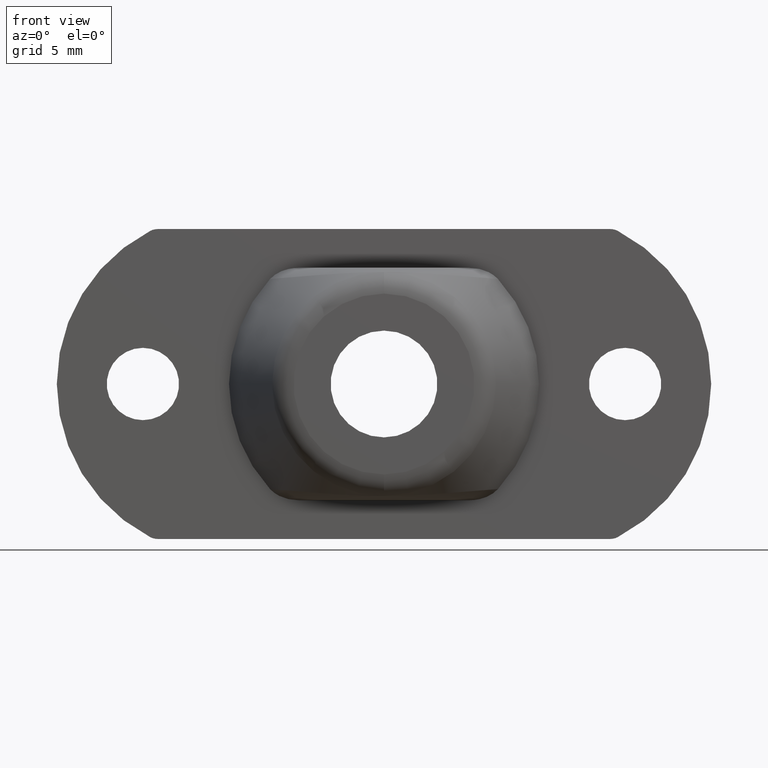
[diagram: clean part render]
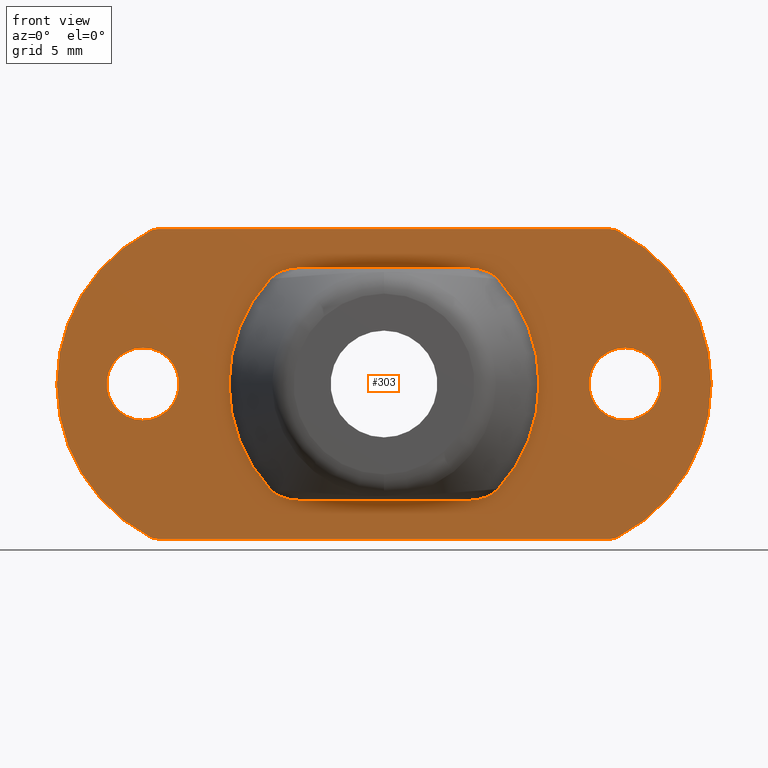
[diagram: same view with one face highlighted and labeled with its STEP entity id]
A machine part, front view. The second image highlights one B-rep face of the part: STEP entity #303.
In plain terms, the highlighted planar face has unit normal (0, -1, 0).
Its self-contained STEP definition (entity closure, byte-faithful):
#10 = AXIS2_PLACEMENT_3D ( 'NONE', #775, #214, #861 ) ;
#13 = FACE_BOUND ( 'NONE', #1221, .T. ) ;
#22 = AXIS2_PLACEMENT_3D ( 'NONE', #323, #212, #1107 ) ;
#32 = ORIENTED_EDGE ( 'NONE', *, *, #351, .T. ) ;
#33 = ORIENTED_EDGE ( 'NONE', *, *, #1429, .T. ) ;
#35 = ORIENTED_EDGE ( 'NONE', *, *, #1222, .T. ) ;
#37 = ORIENTED_EDGE ( 'NONE', *, *, #1179, .T. ) ;
#40 = ORIENTED_EDGE ( 'NONE', *, *, #451, .T. ) ;
#50 = ORIENTED_EDGE ( 'NONE', *, *, #556, .T. ) ;
#51 = DIRECTION ( 'NONE',  ( -0.0000000000000000000, 1.000000000000000000, -0.0000000000000000000 ) ) ;
#54 = ORIENTED_EDGE ( 'NONE', *, *, #806, .T. ) ;
#76 = EDGE_CURVE ( 'NONE', #1309, #629, #841, .T. ) ;
#80 = CARTESIAN_POINT ( 'NONE',  ( 5.700970325320840400, -1.500000000000115000, 6.648326832784012400 ) ) ;
#87 = VERTEX_POINT ( 'NONE', #274 ) ;
#88 = DIRECTION ( 'NONE',  ( 0.0000000000000000000, 0.0000000000000000000, -1.000000000000000000 ) ) ;
#89 = EDGE_LOOP ( 'NONE', ( #1448, #1010 ) ) ;
#105 = CARTESIAN_POINT ( 'NONE',  ( 13.12310562561782100, -1.500000000000170100, 8.000000000000000000 ) ) ;
#133 = CARTESIAN_POINT ( 'NONE',  ( 13.58122847290865900, -1.500000000000170100, -8.888888888888889300 ) ) ;
#154 = CARTESIAN_POINT ( 'NONE',  ( 13.35889894354082100, -1.500000000000170100, 9.000000000000000000 ) ) ;
#157 = VERTEX_POINT ( 'NONE', #392 ) ;
#159 = CARTESIAN_POINT ( 'NONE',  ( 0.0000000000000000000, -1.500000000000115000, 0.0000000000000000000 ) ) ;
#161 = AXIS2_PLACEMENT_3D ( 'NONE', #886, #1109, #441 ) ;
#169 = CIRCLE ( 'NONE', #656, 1.000000000000000900 ) ;
#177 = ORIENTED_EDGE ( 'NONE', *, *, #818, .T. ) ;
#180 = DIRECTION ( 'NONE',  ( 0.0000000000000000000, -1.000000000000000000, 0.0000000000000000000 ) ) ;
#182 = CARTESIAN_POINT ( 'NONE',  ( -13.12310562561766100, -1.500000000000170100, 8.000000000000000000 ) ) ;
#187 = CARTESIAN_POINT ( 'NONE',  ( -5.551314245625789600, -1.500000000000115000, -6.702338859226790300 ) ) ;
#193 = VERTEX_POINT ( 'NONE', #927 ) ;
#196 = CARTESIAN_POINT ( 'NONE',  ( 6.128015736522826300, -1.500000000000115000, 6.477598152113238000 ) ) ;
#197 = EDGE_CURVE ( 'NONE', #193, #87, #647, .T. ) ;
#212 = DIRECTION ( 'NONE',  ( -0.0000000000000000000, 1.000000000000000000, -0.0000000000000000000 ) ) ;
#214 = DIRECTION ( 'NONE',  ( 0.0000000000000000000, -1.000000000000000000, 0.0000000000000000000 ) ) ;
#218 = CARTESIAN_POINT ( 'NONE',  ( -14.00000000000000000, -1.499999999992952100, 0.0000000000000000000 ) ) ;
#223 = CARTESIAN_POINT ( 'NONE',  ( -6.616009981773640200, -1.500000000000115000, -6.101508987215459500 ) ) ;
#231 = EDGE_CURVE ( 'NONE', #555, #485, #346, .T. ) ;
#252 = CARTESIAN_POINT ( 'NONE',  ( 6.131373672574815400, -1.500000000000114800, -6.475759572641408100 ) ) ;
#266 = AXIS2_PLACEMENT_3D ( 'NONE', #723, #51, #832 ) ;
#271 = EDGE_CURVE ( 'NONE', #545, #816, #572, .T. ) ;
#274 = CARTESIAN_POINT ( 'NONE',  ( 14.00000000000000000, -1.499999999992952100, -2.100000000000000100 ) ) ;
#276 = CARTESIAN_POINT ( 'NONE',  ( 13.12310562561782100, -1.500000000000170100, -9.000000000000000000 ) ) ;
#279 = VERTEX_POINT ( 'NONE', #276 ) ;
#286 = CARTESIAN_POINT ( 'NONE',  ( -6.510500428729935500, -1.500000000000114600, -6.215915481997694100 ) ) ;
#303 = ADVANCED_FACE ( 'NONE', ( #13, #864, #1434, #1132 ), #1045, .T. ) ;
#304 = ORIENTED_EDGE ( 'NONE', *, *, #1264, .T. ) ;
#309 = CARTESIAN_POINT ( 'NONE',  ( 6.510666653488649500, -1.500000000000115000, 6.215735240574631800 ) ) ;
#314 = B_SPLINE_CURVE_WITH_KNOTS ( 'NONE', 3,
 ( #1326, #1131, #1456, #507, #1288, #622, #1404, #737 ),
 .UNSPECIFIED., .F., .F.,
 ( 4, 2, 2, 4 ),
 ( 0.0000000000000000000, 0.0004594128203838278500, 0.0009188256407676556900, 0.001837651281535309000 ),
 .UNSPECIFIED. ) ;
#315 = VECTOR ( 'NONE', #848, 1000.000000000000000 ) ;
#323 = CARTESIAN_POINT ( 'NONE',  ( 14.00000000000000000, -1.499999999992952100, 0.0000000000000000000 ) ) ;
#332 = DIRECTION ( 'NONE',  ( 0.0000000000000000000, 0.0000000000000000000, -1.000000000000000000 ) ) ;
#336 = ORIENTED_EDGE ( 'NONE', *, *, #427, .T. ) ;
#338 = DIRECTION ( 'NONE',  ( 0.0000000000000000000, -1.000000000000000000, 0.0000000000000000000 ) ) ;
#346 = LINE ( 'NONE', #154, #604 ) ;
#347 = ORIENTED_EDGE ( 'NONE', *, *, #76, .T. ) ;
#351 = EDGE_CURVE ( 'NONE', #1237, #555, #498, .T. ) ;
#373 = CARTESIAN_POINT ( 'NONE',  ( 6.391020845491791400, -1.500000000000115000, -6.312004959507651100 ) ) ;
#379 = EDGE_CURVE ( 'NONE', #560, #856, #1405, .T. ) ;
#392 = CARTESIAN_POINT ( 'NONE',  ( 6.616009981773640200, -1.500000000000115000, 6.101508987215459500 ) ) ;
#407 = VERTEX_POINT ( 'NONE', #735 ) ;
#414 = CARTESIAN_POINT ( 'NONE',  ( -4.939806075597530800, -1.499999999992952100, -6.750000000000000000 ) ) ;
#421 = CARTESIAN_POINT ( 'NONE',  ( -14.00000000000000000, -1.499999999992952100, 2.100000000000000100 ) ) ;
#427 = EDGE_CURVE ( 'NONE', #529, #1204, #464, .T. ) ;
#432 = CARTESIAN_POINT ( 'NONE',  ( 0.0000000000000000000, -1.500000000000115000, 0.0000000000000000000 ) ) ;
#441 = DIRECTION ( 'NONE',  ( 0.0000000000000000000, 0.0000000000000000000, -1.000000000000000000 ) ) ;
#444 = CARTESIAN_POINT ( 'NONE',  ( -13.35889894354066100, -1.500000000000170100, -9.000000000000000000 ) ) ;
#451 = EDGE_CURVE ( 'NONE', #407, #1184, #1021, .T. ) ;
#452 = ORIENTED_EDGE ( 'NONE', *, *, #231, .T. ) ;
#458 = CARTESIAN_POINT ( 'NONE',  ( 13.58122847290865900, -1.500000000000170100, 8.888888888888889300 ) ) ;
#463 = CIRCLE ( 'NONE', #494, 2.100000000000000100 ) ;
#464 = CIRCLE ( 'NONE', #10, 10.00000000000000000 ) ;
#485 = VERTEX_POINT ( 'NONE', #1431 ) ;
#489 = CARTESIAN_POINT ( 'NONE',  ( 4.939806075597530800, -1.499999999992952100, -6.750000000000000000 ) ) ;
#494 = AXIS2_PLACEMENT_3D ( 'NONE', #218, #999, #332 ) ;
#498 = CIRCLE ( 'NONE', #858, 1.000000000000000000 ) ;
#507 = CARTESIAN_POINT ( 'NONE',  ( -6.131116787332070200, -1.500000000000115000, 6.475907926370528100 ) ) ;
#510 = ORIENTED_EDGE ( 'NONE', *, *, #1449, .T. ) ;
#527 = CARTESIAN_POINT ( 'NONE',  ( -6.616009981773640200, -1.500000000000115000, 6.101508987215459500 ) ) ;
#529 = VERTEX_POINT ( 'NONE', #1119 ) ;
#540 = CARTESIAN_POINT ( 'NONE',  ( -4.939806075597539700, -1.499999999992952100, 6.750000000000000000 ) ) ;
#542 = DIRECTION ( 'NONE',  ( 0.0000000000000000000, 0.0000000000000000000, -1.000000000000000000 ) ) ;
#545 = VERTEX_POINT ( 'NONE', #540 ) ;
#553 = DIRECTION ( 'NONE',  ( 0.0000000000000000000, -1.000000000000000000, 0.0000000000000000000 ) ) ;
#555 = VERTEX_POINT ( 'NONE', #558 ) ;
#556 = EDGE_CURVE ( 'NONE', #649, #279, #1183, .T. ) ;
#558 = CARTESIAN_POINT ( 'NONE',  ( 13.12310562561782100, -1.500000000000170100, 9.000000000000000000 ) ) ;
#560 = VERTEX_POINT ( 'NONE', #1181 ) ;
#564 = CIRCLE ( 'NONE', #1017, 1.000000000000000000 ) ;
#570 = DIRECTION ( 'NONE',  ( -1.000000000000000000, 0.0000000000000000000, 0.0000000000000000000 ) ) ;
#572 = LINE ( 'NONE', #963, #315 ) ;
#604 = VECTOR ( 'NONE', #1253, 1000.000000000000000 ) ;
#608 = CARTESIAN_POINT ( 'NONE',  ( 5.558169829960056600, -1.500000000000115200, -6.700299535577277000 ) ) ;
#614 = CARTESIAN_POINT ( 'NONE',  ( 6.616009981773640200, -1.500000000000115000, -6.101508987215459500 ) ) ;
#622 = CARTESIAN_POINT ( 'NONE',  ( -5.558305194847887900, -1.500000000000114800, 6.700244443319615300 ) ) ;
#629 = VERTEX_POINT ( 'NONE', #967 ) ;
#634 = DIRECTION ( 'NONE',  ( 0.0000000000000000000, -1.000000000000000000, 0.0000000000000000000 ) ) ;
#642 = CARTESIAN_POINT ( 'NONE',  ( 4.939806075597530800, -1.499999999992952100, 6.750000000000000000 ) ) ;
#647 = CIRCLE ( 'NONE', #266, 2.100000000000000100 ) ;
#649 = VERTEX_POINT ( 'NONE', #736 ) ;
#654 = CARTESIAN_POINT ( 'NONE',  ( -13.58122847290849900, -1.500000000000170100, -8.888888888888889300 ) ) ;
#656 = AXIS2_PLACEMENT_3D ( 'NONE', #1223, #553, #1333 ) ;
#690 = CARTESIAN_POINT ( 'NONE',  ( 6.616009981773640200, -1.500000000000115000, -6.101508987215459500 ) ) ;
#723 = CARTESIAN_POINT ( 'NONE',  ( 14.00000000000000000, -1.499999999992952100, 0.0000000000000000000 ) ) ;
#730 = CIRCLE ( 'NONE', #796, 10.00000000000000000 ) ;
#735 = CARTESIAN_POINT ( 'NONE',  ( -14.00000000000000000, -1.499999999992952100, -2.100000000000000100 ) ) ;
#736 = CARTESIAN_POINT ( 'NONE',  ( -13.12310562561766100, -1.500000000000170100, -9.000000000000000000 ) ) ;
#737 = CARTESIAN_POINT ( 'NONE',  ( -4.939806075597539700, -1.499999999992952100, 6.750000000000000000 ) ) ;
#749 = CARTESIAN_POINT ( 'NONE',  ( 5.550105634215881000, -1.500000000000114800, 6.687029123979004700 ) ) ;
#756 = DIRECTION ( 'NONE',  ( 0.0000000000000000000, -1.000000000000000000, 0.0000000000000000000 ) ) ;
#775 = CARTESIAN_POINT ( 'NONE',  ( -9.000000000000000000, -1.500000000000170100, 0.0000000000000000000 ) ) ;
#785 = ORIENTED_EDGE ( 'NONE', *, *, #379, .T. ) ;
#787 = AXIS2_PLACEMENT_3D ( 'NONE', #159, #634, #928 ) ;
#796 = AXIS2_PLACEMENT_3D ( 'NONE', #1000, #338, #1116 ) ;
#804 = VECTOR ( 'NONE', #570, 1000.000000000000000 ) ;
#806 = EDGE_CURVE ( 'NONE', #485, #529, #564, .T. ) ;
#816 = VERTEX_POINT ( 'NONE', #1224 ) ;
#818 = EDGE_CURVE ( 'NONE', #856, #1164, #1124, .T. ) ;
#821 = CIRCLE ( 'NONE', #22, 2.100000000000000100 ) ;
#826 = AXIS2_PLACEMENT_3D ( 'NONE', #432, #1208, #542 ) ;
#832 = DIRECTION ( 'NONE',  ( 0.0000000000000000000, 0.0000000000000000000, -1.000000000000000000 ) ) ;
#839 = CARTESIAN_POINT ( 'NONE',  ( -6.127812281202378300, -1.500000000000114600, -6.477653480698494400 ) ) ;
#840 = LINE ( 'NONE', #1350, #804 ) ;
#841 = B_SPLINE_CURVE_WITH_KNOTS ( 'NONE', 3,
 ( #614, #1056, #373, #252, #1273, #608, #1162, #489 ),
 .UNSPECIFIED., .F., .F.,
 ( 4, 2, 2, 4 ),
 ( 0.0000000000000000000, 0.0004591523065738800500, 0.0009183046131477601000, 0.001836609226295520200 ),
 .UNSPECIFIED. ) ;
#847 = DIRECTION ( 'NONE',  ( 0.0000000000000000000, 0.0000000000000000000, -1.000000000000000000 ) ) ;
#848 = DIRECTION ( 'NONE',  ( 1.000000000000000000, 0.0000000000000000000, 0.0000000000000000000 ) ) ;
#856 = VERTEX_POINT ( 'NONE', #223 ) ;
#858 = AXIS2_PLACEMENT_3D ( 'NONE', #105, #180, #1414 ) ;
#859 = CARTESIAN_POINT ( 'NONE',  ( 5.989800241758378400, -1.500000000000114800, 6.543425856405197500 ) ) ;
#861 = DIRECTION ( 'NONE',  ( 0.0000000000000000000, 0.0000000000000000000, -1.000000000000000000 ) ) ;
#864 = FACE_BOUND ( 'NONE', #89, .T. ) ;
#865 = DIRECTION ( 'NONE',  ( 1.000000000000000000, 0.0000000000000000000, 0.0000000000000000000 ) ) ;
#874 = EDGE_CURVE ( 'NONE', #87, #193, #821, .T. ) ;
#879 = VECTOR ( 'NONE', #865, 1000.000000000000000 ) ;
#883 = ORIENTED_EDGE ( 'NONE', *, *, #1425, .T. ) ;
#886 = CARTESIAN_POINT ( 'NONE',  ( -14.00000000000000000, -1.499999999992952100, 0.0000000000000000000 ) ) ;
#927 = CARTESIAN_POINT ( 'NONE',  ( 14.00000000000000000, -1.499999999992952100, 2.100000000000000100 ) ) ;
#928 = DIRECTION ( 'NONE',  ( 0.0000000000000000000, 0.0000000000000000000, -1.000000000000000000 ) ) ;
#946 = CARTESIAN_POINT ( 'NONE',  ( -6.388213634190924100, -1.500000000000114800, -6.314119092981215400 ) ) ;
#947 = DIRECTION ( 'NONE',  ( -0.0000000000000000000, 1.000000000000000000, -0.0000000000000000000 ) ) ;
#956 = DIRECTION ( 'NONE',  ( 0.0000000000000000000, -1.000000000000000000, 0.0000000000000000000 ) ) ;
#963 = CARTESIAN_POINT ( 'NONE',  ( 28.06997129832040000, -1.499999999992952100, 6.750000000000000000 ) ) ;
#967 = CARTESIAN_POINT ( 'NONE',  ( 4.939806075597530800, -1.499999999992952100, -6.750000000000000000 ) ) ;
#972 = CARTESIAN_POINT ( 'NONE',  ( 6.389337665601252600, -1.500000000000115000, 6.313340379108318200 ) ) ;
#999 = DIRECTION ( 'NONE',  ( -0.0000000000000000000, 1.000000000000000000, -0.0000000000000000000 ) ) ;
#1000 = CARTESIAN_POINT ( 'NONE',  ( 9.000000000000149200, -1.500000000000170100, 0.0000000000000000000 ) ) ;
#1010 = ORIENTED_EDGE ( 'NONE', *, *, #874, .T. ) ;
#1017 = AXIS2_PLACEMENT_3D ( 'NONE', #182, #956, #847 ) ;
#1021 = CIRCLE ( 'NONE', #161, 2.100000000000000100 ) ;
#1044 = EDGE_CURVE ( 'NONE', #1164, #545, #314, .T. ) ;
#1045 = PLANE ( 'NONE',  #787 ) ;
#1056 = CARTESIAN_POINT ( 'NONE',  ( 6.510392827108494100, -1.500000000000115000, -6.216032156971540900 ) ) ;
#1060 = CARTESIAN_POINT ( 'NONE',  ( -6.616009981773640200, -1.500000000000115000, -6.101508987215459500 ) ) ;
#1061 = DIRECTION ( 'NONE',  ( 0.0000000000000000000, 0.0000000000000000000, -1.000000000000000000 ) ) ;
#1064 = ORIENTED_EDGE ( 'NONE', *, *, #1155, .T. ) ;
#1066 = CARTESIAN_POINT ( 'NONE',  ( 0.0000000000000000000, -1.500000000000115000, 0.0000000000000000000 ) ) ;
#1071 = CARTESIAN_POINT ( 'NONE',  ( -5.988980252745393300, -1.500000000000114800, -6.543892661402816600 ) ) ;
#1087 = CARTESIAN_POINT ( 'NONE',  ( 6.616009981773640200, -1.500000000000115000, 6.101508987215459500 ) ) ;
#1107 = DIRECTION ( 'NONE',  ( 0.0000000000000000000, 0.0000000000000000000, -1.000000000000000000 ) ) ;
#1109 = DIRECTION ( 'NONE',  ( -0.0000000000000000000, 1.000000000000000000, -0.0000000000000000000 ) ) ;
#1116 = DIRECTION ( 'NONE',  ( 0.0000000000000000000, 0.0000000000000000000, -1.000000000000000000 ) ) ;
#1119 = CARTESIAN_POINT ( 'NONE',  ( -13.58122847290849900, -1.500000000000170100, 8.888888888888889300 ) ) ;
#1124 = CIRCLE ( 'NONE', #1243, 9.000000000000000000 ) ;
#1131 = CARTESIAN_POINT ( 'NONE',  ( -6.510433280115998800, -1.500000000000115000, 6.215988292822196100 ) ) ;
#1132 = FACE_OUTER_BOUND ( 'NONE', #1283, .T. ) ;
#1155 = EDGE_CURVE ( 'NONE', #816, #157, #1346, .T. ) ;
#1162 = CARTESIAN_POINT ( 'NONE',  ( 5.249624062771783200, -1.500000000000115000, -6.749999999999261000 ) ) ;
#1164 = VERTEX_POINT ( 'NONE', #527 ) ;
#1171 = CIRCLE ( 'NONE', #1215, 1.000000000000000900 ) ;
#1177 = CARTESIAN_POINT ( 'NONE',  ( -5.249631956731022300, -1.499999999992950100, -6.750000000000000900 ) ) ;
#1179 = EDGE_CURVE ( 'NONE', #1204, #649, #1171, .T. ) ;
#1181 = CARTESIAN_POINT ( 'NONE',  ( -4.939806075597530800, -1.499999999992952100, -6.750000000000000000 ) ) ;
#1183 = LINE ( 'NONE', #444, #879 ) ;
#1184 = VERTEX_POINT ( 'NONE', #421 ) ;
#1204 = VERTEX_POINT ( 'NONE', #654 ) ;
#1208 = DIRECTION ( 'NONE',  ( -0.0000000000000000000, 1.000000000000000000, -0.0000000000000000000 ) ) ;
#1215 = AXIS2_PLACEMENT_3D ( 'NONE', #1428, #756, #88 ) ;
#1221 = EDGE_LOOP ( 'NONE', ( #883, #40 ) ) ;
#1222 = EDGE_CURVE ( 'NONE', #157, #1309, #1440, .T. ) ;
#1223 = CARTESIAN_POINT ( 'NONE',  ( 13.12310562561782100, -1.500000000000170100, -8.000000000000000000 ) ) ;
#1224 = CARTESIAN_POINT ( 'NONE',  ( 4.939806075597530800, -1.499999999992952100, 6.750000000000000000 ) ) ;
#1237 = VERTEX_POINT ( 'NONE', #458 ) ;
#1243 = AXIS2_PLACEMENT_3D ( 'NONE', #1066, #947, #1061 ) ;
#1253 = DIRECTION ( 'NONE',  ( -1.000000000000000000, 0.0000000000000000000, 0.0000000000000000000 ) ) ;
#1264 = EDGE_CURVE ( 'NONE', #629, #560, #840, .T. ) ;
#1273 = CARTESIAN_POINT ( 'NONE',  ( 5.990104138968664700, -1.500000000000114800, -6.543260985337685300 ) ) ;
#1283 = EDGE_LOOP ( 'NONE', ( #50, #33, #510, #32, #452, #54, #336, #37 ) ) ;
#1288 = CARTESIAN_POINT ( 'NONE',  ( -5.989976370259645600, -1.500000000000115200, 6.543310376443356400 ) ) ;
#1306 = CARTESIAN_POINT ( 'NONE',  ( 5.094554218002370400, -1.499999999992949600, 6.750000000000000000 ) ) ;
#1307 = VERTEX_POINT ( 'NONE', #133 ) ;
#1309 = VERTEX_POINT ( 'NONE', #690 ) ;
#1316 = ORIENTED_EDGE ( 'NONE', *, *, #271, .T. ) ;
#1323 = ORIENTED_EDGE ( 'NONE', *, *, #1044, .T. ) ;
#1326 = CARTESIAN_POINT ( 'NONE',  ( -6.616009981773640200, -1.500000000000115000, 6.101508987215459500 ) ) ;
#1333 = DIRECTION ( 'NONE',  ( 0.0000000000000000000, 0.0000000000000000000, -1.000000000000000000 ) ) ;
#1346 = B_SPLINE_CURVE_WITH_KNOTS ( 'NONE', 3,
 ( #642, #1306, #1423, #749, #80, #859, #196, #972, #309, #1087 ),
 .UNSPECIFIED., .F., .F.,
 ( 4, 2, 2, 2, 4 ),
 ( 0.0000000000000000000, 0.0004598830474192713200, 0.0009197660948385426500, 0.001379649142257814000, 0.001839532189677085300 ),
 .UNSPECIFIED. ) ;
#1350 = CARTESIAN_POINT ( 'NONE',  ( -28.06997129832029700, -1.499999999992952100, -6.750000000000000000 ) ) ;
#1383 = EDGE_LOOP ( 'NONE', ( #1316, #1064, #35, #347, #304, #785, #177, #1323 ) ) ;
#1404 = CARTESIAN_POINT ( 'NONE',  ( -5.249565605583595300, -1.500000000000115000, 6.749999999999260100 ) ) ;
#1405 = B_SPLINE_CURVE_WITH_KNOTS ( 'NONE', 3,
 ( #414, #1177, #187, #1071, #839, #946, #286, #1060 ),
 .UNSPECIFIED., .F., .F.,
 ( 4, 2, 2, 4 ),
 ( 0.0000000000000000000, 0.0009161997936570034300, 0.001374299690485504800, 0.001832399587314006000 ),
 .UNSPECIFIED. ) ;
#1414 = DIRECTION ( 'NONE',  ( 0.0000000000000000000, 0.0000000000000000000, -1.000000000000000000 ) ) ;
#1423 = CARTESIAN_POINT ( 'NONE',  ( 5.247590191551091200, -1.500000000000115500, 6.737597304000501300 ) ) ;
#1425 = EDGE_CURVE ( 'NONE', #1184, #407, #463, .T. ) ;
#1428 = CARTESIAN_POINT ( 'NONE',  ( -13.12310562561766100, -1.500000000000170100, -8.000000000000000000 ) ) ;
#1429 = EDGE_CURVE ( 'NONE', #279, #1307, #169, .T. ) ;
#1431 = CARTESIAN_POINT ( 'NONE',  ( -13.12310562561766100, -1.500000000000170100, 9.000000000000000000 ) ) ;
#1434 = FACE_BOUND ( 'NONE', #1383, .T. ) ;
#1440 = CIRCLE ( 'NONE', #826, 9.000000000000000000 ) ;
#1448 = ORIENTED_EDGE ( 'NONE', *, *, #197, .T. ) ;
#1449 = EDGE_CURVE ( 'NONE', #1307, #1237, #730, .T. ) ;
#1456 = CARTESIAN_POINT ( 'NONE',  ( -6.391028007283431100, -1.500000000000114800, 6.312014088567964100 ) ) ;